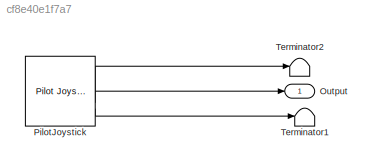
MODEL slx_cf8e40e1f7a7
KIND model
CONFIG AbsTol = auto
CONFIG EnableMultiTasking = off
CONFIG FixedStep = auto
CONFIG MaxStep = auto
CONFIG MinStep = auto
CONFIG RelTol = 1e-3
CONFIG SampleTimeConstraint = Unconstrained
CONFIG SolverName = VariableStepAuto
CONFIG StartTime = 0.0
CONFIG StopTime = 10.0
BLOCK [Outport] Output
BLOCK [Reference] PilotJoystick  REF=aerolibanimutils/Pilot Joystick
  LibrarySourceBlock = aerolibanimutils/Pilot Joystick All
  SourceBlock = aerolibanimutils/Pilot Joystick
  SourceType = PilotJoystick
BLOCK [Terminator] Terminator1
BLOCK [Terminator] Terminator2
LINE PilotJoystick:1 -> Terminator2:1
LINE PilotJoystick:2 -> Output:1
LINE PilotJoystick:3 -> Terminator1:1
